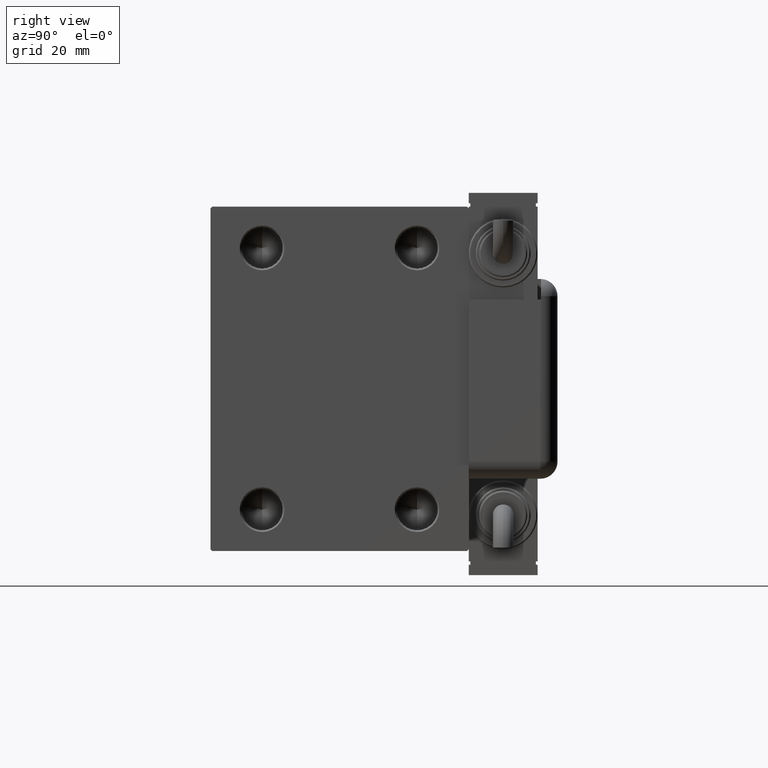
[diagram: clean part render]
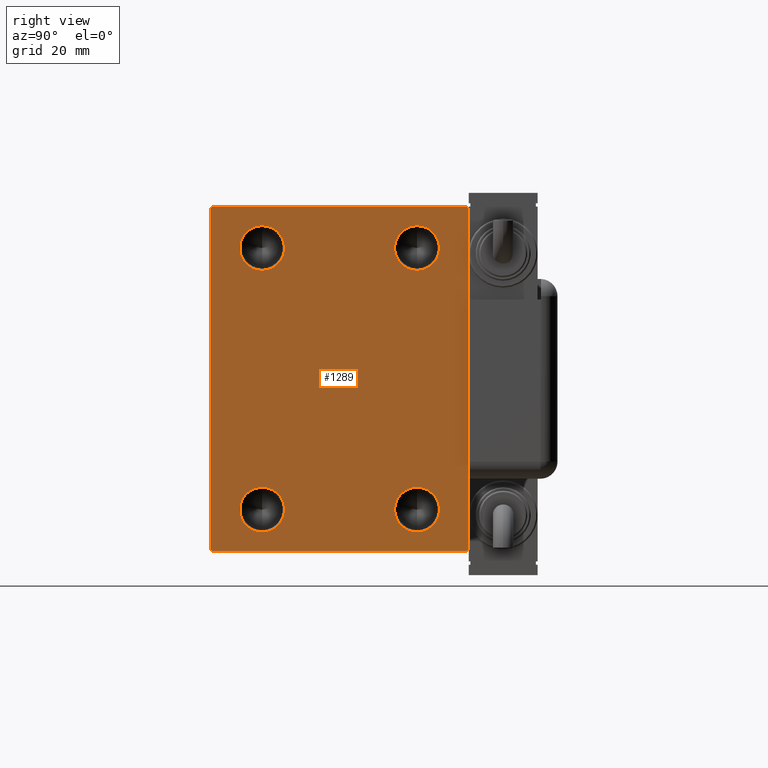
[diagram: same view with one face highlighted and labeled with its STEP entity id]
A machine part, right view. The second image highlights one B-rep face of the part: STEP entity #1289.
In plain terms, the highlighted planar face has unit normal (1, 0, 0).
Its self-contained STEP definition (entity closure, byte-faithful):
#79 = VECTOR ( 'NONE', #59942, 999.9999999999998863 ) ;
#384 = ORIENTED_EDGE ( 'NONE', *, *, #13423, .T. ) ;
#642 = AXIS2_PLACEMENT_3D ( 'NONE', #56776, #29943, #51925 ) ;
#895 = AXIS2_PLACEMENT_3D ( 'NONE', #33063, #51668, #23938 ) ;
#1024 = VERTEX_POINT ( 'NONE', #39678 ) ;
#1154 = DIRECTION ( 'NONE',  ( -0.000000000000000000, -0.7071067811865525687, 0.7071067811865425767 ) ) ;
#1289 = ADVANCED_FACE ( 'NONE', ( #7922, #2757, #40215, #59688, #21631 ), #26512, .T. ) ;
#1761 = VECTOR ( 'NONE', #11153, 1000.000000000000000 ) ;
#2477 = DIRECTION ( 'NONE',  ( 0.000000000000000000, 0.000000000000000000, -1.000000000000000000 ) ) ;
#2616 = VECTOR ( 'NONE', #51568, 1000.000000000000000 ) ;
#2717 = DIRECTION ( 'NONE',  ( 0.000000000000000000, 0.000000000000000000, -1.000000000000000000 ) ) ;
#2736 = LINE ( 'NONE', #54210, #35808 ) ;
#2757 = FACE_BOUND ( 'NONE', #24676, .T. ) ;
#2858 = CARTESIAN_POINT ( 'NONE',  ( 98.00000000000000000, 37.00000000000001421, -50.00000000000000000 ) ) ;
#3414 = CARTESIAN_POINT ( 'NONE',  ( 98.00000000000000000, -22.50000000000000000, -38.00000000000000711 ) ) ;
#3581 = VECTOR ( 'NONE', #40637, 1000.000000000000000 ) ;
#3909 = CARTESIAN_POINT ( 'NONE',  ( 98.00000000000000000, 22.50000000000000000, 44.49999999999998579 ) ) ;
#5886 = ORIENTED_EDGE ( 'NONE', *, *, #45143, .F. ) ;
#6306 = CARTESIAN_POINT ( 'NONE',  ( 98.00000000000000000, 43.49999999999974420, 43.50000000000035527 ) ) ;
#6861 = CARTESIAN_POINT ( 'NONE',  ( 98.00000000000000000, -22.50000000000000000, 31.50000000000000000 ) ) ;
#7344 = ORIENTED_EDGE ( 'NONE', *, *, #34744, .F. ) ;
#7617 = CARTESIAN_POINT ( 'NONE',  ( 98.00000000000000000, 0.000000000000000000, 0.000000000000000000 ) ) ;
#7886 = DIRECTION ( 'NONE',  ( 1.000000000000000000, -0.000000000000000000, -0.000000000000000000 ) ) ;
#7922 = FACE_BOUND ( 'NONE', #11873, .T. ) ;
#7960 = AXIS2_PLACEMENT_3D ( 'NONE', #23216, #50651, #32341 ) ;
#8911 = ORIENTED_EDGE ( 'NONE', *, *, #57261, .T. ) ;
#10206 = VERTEX_POINT ( 'NONE', #3909 ) ;
#10266 = EDGE_CURVE ( 'NONE', #23242, #56742, #32730, .T. ) ;
#10674 = CARTESIAN_POINT ( 'NONE',  ( 98.00000000000000000, 22.50000000000000000, 31.50000000000000000 ) ) ;
#10837 = DIRECTION ( 'NONE',  ( 1.000000000000000000, -0.000000000000000000, -0.000000000000000000 ) ) ;
#11153 = DIRECTION ( 'NONE',  ( 0.000000000000000000, 1.000000000000000000, 0.000000000000000000 ) ) ;
#11642 = ORIENTED_EDGE ( 'NONE', *, *, #26932, .F. ) ;
#11873 = EDGE_LOOP ( 'NONE', ( #58174, #5886 ) ) ;
#11964 = CARTESIAN_POINT ( 'NONE',  ( 98.00000000000000000, -22.50000000000000000, -31.50000000000001421 ) ) ;
#12357 = ORIENTED_EDGE ( 'NONE', *, *, #49728, .F. ) ;
#13109 = VERTEX_POINT ( 'NONE', #40606 ) ;
#13330 = EDGE_CURVE ( 'NONE', #59250, #16831, #2736, .T. ) ;
#13423 = EDGE_CURVE ( 'NONE', #43844, #1024, #23538, .T. ) ;
#13742 = CIRCLE ( 'NONE', #32201, 6.499999999999992006 ) ;
#14148 = EDGE_CURVE ( 'NONE', #45353, #45145, #44293, .T. ) ;
#14949 = EDGE_CURVE ( 'NONE', #16831, #43844, #28859, .T. ) ;
#15076 = ORIENTED_EDGE ( 'NONE', *, *, #28232, .T. ) ;
#15735 = VERTEX_POINT ( 'NONE', #53310 ) ;
#15997 = CARTESIAN_POINT ( 'NONE',  ( 98.00000000000000000, 37.50000000000000711, -49.50000000000001421 ) ) ;
#16831 = VERTEX_POINT ( 'NONE', #42058 ) ;
#17043 = AXIS2_PLACEMENT_3D ( 'NONE', #57133, #10837, #29695 ) ;
#17950 = DIRECTION ( 'NONE',  ( 0.000000000000000000, 0.000000000000000000, -1.000000000000000000 ) ) ;
#18361 = CIRCLE ( 'NONE', #895, 6.499999999999992006 ) ;
#18673 = ORIENTED_EDGE ( 'NONE', *, *, #32732, .T. ) ;
#19294 = CARTESIAN_POINT ( 'NONE',  ( 98.00000000000000000, -37.50000000000000000, 49.49999999999998579 ) ) ;
#20139 = CARTESIAN_POINT ( 'NONE',  ( 98.00000000000000000, 22.50000000000000000, -38.00000000000000711 ) ) ;
#20147 = CARTESIAN_POINT ( 'NONE',  ( 98.00000000000000000, 22.50000000000000000, -44.50000000000000000 ) ) ;
#20596 = LINE ( 'NONE', #58065, #1761 ) ;
#21631 = FACE_OUTER_BOUND ( 'NONE', #42299, .T. ) ;
#21660 = DIRECTION ( 'NONE',  ( 0.000000000000000000, 0.000000000000000000, -1.000000000000000000 ) ) ;
#21700 = ORIENTED_EDGE ( 'NONE', *, *, #25399, .F. ) ;
#22047 = CARTESIAN_POINT ( 'NONE',  ( 98.00000000000000000, -37.50000000000000000, 49.99999999999998579 ) ) ;
#23216 = CARTESIAN_POINT ( 'NONE',  ( 98.00000000000000000, 22.50000000000000000, -38.00000000000000711 ) ) ;
#23242 = VERTEX_POINT ( 'NONE', #11964 ) ;
#23538 = LINE ( 'NONE', #56129, #2616 ) ;
#23938 = DIRECTION ( 'NONE',  ( 0.000000000000000000, 0.000000000000000000, -1.000000000000000000 ) ) ;
#24676 = EDGE_LOOP ( 'NONE', ( #7344, #41631 ) ) ;
#24736 = ORIENTED_EDGE ( 'NONE', *, *, #13330, .T. ) ;
#25320 = DIRECTION ( 'NONE',  ( 1.000000000000000000, -0.000000000000000000, -0.000000000000000000 ) ) ;
#25399 = EDGE_CURVE ( 'NONE', #56742, #23242, #13742, .T. ) ;
#25606 = EDGE_LOOP ( 'NONE', ( #46560, #21700 ) ) ;
#26512 = PLANE ( 'NONE',  #54818 ) ;
#26782 = CIRCLE ( 'NONE', #642, 6.499999999999992006 ) ;
#26932 = EDGE_CURVE ( 'NONE', #13109, #54220, #57557, .T. ) ;
#27066 = CARTESIAN_POINT ( 'NONE',  ( 98.00000000000000000, -43.49999999999972999, 43.50000000000034106 ) ) ;
#27499 = VECTOR ( 'NONE', #45041, 1000.000000000000114 ) ;
#28028 = CIRCLE ( 'NONE', #30929, 6.499999999999992006 ) ;
#28065 = CARTESIAN_POINT ( 'NONE',  ( 98.00000000000000000, -37.00000000000000000, -50.00000000000000000 ) ) ;
#28232 = EDGE_CURVE ( 'NONE', #1024, #45353, #41366, .T. ) ;
#28859 = LINE ( 'NONE', #6306, #51273 ) ;
#29523 = DIRECTION ( 'NONE',  ( 0.000000000000000000, -1.387778780781445676E-16, 1.000000000000000000 ) ) ;
#29695 = DIRECTION ( 'NONE',  ( 0.000000000000000000, 0.000000000000000000, -1.000000000000000000 ) ) ;
#29943 = DIRECTION ( 'NONE',  ( 1.000000000000000000, -0.000000000000000000, -0.000000000000000000 ) ) ;
#30841 = CARTESIAN_POINT ( 'NONE',  ( 98.00000000000000000, 43.49999999999974420, -43.50000000000034817 ) ) ;
#30929 = AXIS2_PLACEMENT_3D ( 'NONE', #43901, #25320, #2477 ) ;
#32046 = CIRCLE ( 'NONE', #52501, 6.499999999999992006 ) ;
#32184 = EDGE_CURVE ( 'NONE', #10206, #37961, #45269, .T. ) ;
#32201 = AXIS2_PLACEMENT_3D ( 'NONE', #3414, #40577, #54590 ) ;
#32206 = VERTEX_POINT ( 'NONE', #6861 ) ;
#32341 = DIRECTION ( 'NONE',  ( 0.000000000000000000, 0.000000000000000000, -1.000000000000000000 ) ) ;
#32730 = CIRCLE ( 'NONE', #40549, 6.499999999999992006 ) ;
#32732 = EDGE_CURVE ( 'NONE', #36823, #59250, #36321, .T. ) ;
#33063 = CARTESIAN_POINT ( 'NONE',  ( 98.00000000000000000, 22.50000000000000000, 37.99999999999999289 ) ) ;
#34744 = EDGE_CURVE ( 'NONE', #15735, #32206, #26782, .T. ) ;
#35808 = VECTOR ( 'NONE', #29523, 1000.000000000000000 ) ;
#36321 = LINE ( 'NONE', #30841, #40443 ) ;
#36823 = VERTEX_POINT ( 'NONE', #2858 ) ;
#37961 = VERTEX_POINT ( 'NONE', #10674 ) ;
#39274 = EDGE_LOOP ( 'NONE', ( #11642, #12357 ) ) ;
#39678 = CARTESIAN_POINT ( 'NONE',  ( 98.00000000000000000, -36.99999999999999289, 49.99999999999998579 ) ) ;
#40215 = FACE_BOUND ( 'NONE', #25606, .T. ) ;
#40443 = VECTOR ( 'NONE', #54913, 1000.000000000000000 ) ;
#40515 = DIRECTION ( 'NONE',  ( 1.000000000000000000, 0.000000000000000000, 0.000000000000000000 ) ) ;
#40549 = AXIS2_PLACEMENT_3D ( 'NONE', #58749, #7886, #2717 ) ;
#40577 = DIRECTION ( 'NONE',  ( 1.000000000000000000, -0.000000000000000000, -0.000000000000000000 ) ) ;
#40606 = CARTESIAN_POINT ( 'NONE',  ( 98.00000000000000000, 22.50000000000000000, -31.50000000000001421 ) ) ;
#40637 = DIRECTION ( 'NONE',  ( 0.000000000000000000, 0.000000000000000000, -1.000000000000000000 ) ) ;
#41366 = LINE ( 'NONE', #27066, #79 ) ;
#41631 = ORIENTED_EDGE ( 'NONE', *, *, #42190, .F. ) ;
#42058 = CARTESIAN_POINT ( 'NONE',  ( 98.00000000000000000, 37.49999999999999289, 49.50000000000002842 ) ) ;
#42190 = EDGE_CURVE ( 'NONE', #32206, #15735, #28028, .T. ) ;
#42299 = EDGE_LOOP ( 'NONE', ( #384, #15076, #48539, #8911, #49486, #18673, #24736, #48915 ) ) ;
#42489 = EDGE_CURVE ( 'NONE', #55105, #36823, #20596, .T. ) ;
#43844 = VERTEX_POINT ( 'NONE', #52695 ) ;
#43901 = CARTESIAN_POINT ( 'NONE',  ( 98.00000000000000000, -22.50000000000000000, 37.99999999999999289 ) ) ;
#44293 = LINE ( 'NONE', #22047, #3581 ) ;
#45041 = DIRECTION ( 'NONE',  ( -0.000000000000000000, 0.7071067811865474617, -0.7071067811865474617 ) ) ;
#45143 = EDGE_CURVE ( 'NONE', #37961, #10206, #18361, .T. ) ;
#45145 = VERTEX_POINT ( 'NONE', #56523 ) ;
#45269 = CIRCLE ( 'NONE', #17043, 6.499999999999992006 ) ;
#45353 = VERTEX_POINT ( 'NONE', #19294 ) ;
#46560 = ORIENTED_EDGE ( 'NONE', *, *, #10266, .F. ) ;
#48539 = ORIENTED_EDGE ( 'NONE', *, *, #14148, .T. ) ;
#48915 = ORIENTED_EDGE ( 'NONE', *, *, #14949, .T. ) ;
#49486 = ORIENTED_EDGE ( 'NONE', *, *, #42489, .T. ) ;
#49728 = EDGE_CURVE ( 'NONE', #54220, #13109, #32046, .T. ) ;
#50651 = DIRECTION ( 'NONE',  ( 1.000000000000000000, -0.000000000000000000, -0.000000000000000000 ) ) ;
#51273 = VECTOR ( 'NONE', #1154, 999.9999999999998863 ) ;
#51568 = DIRECTION ( 'NONE',  ( 0.000000000000000000, -1.000000000000000000, -2.775557561562891844E-16 ) ) ;
#51668 = DIRECTION ( 'NONE',  ( 1.000000000000000000, -0.000000000000000000, -0.000000000000000000 ) ) ;
#51925 = DIRECTION ( 'NONE',  ( 0.000000000000000000, 0.000000000000000000, -1.000000000000000000 ) ) ;
#52501 = AXIS2_PLACEMENT_3D ( 'NONE', #20139, #52744, #21660 ) ;
#52695 = CARTESIAN_POINT ( 'NONE',  ( 98.00000000000000000, 37.00000000000000711, 50.00000000000000711 ) ) ;
#52744 = DIRECTION ( 'NONE',  ( 1.000000000000000000, -0.000000000000000000, -0.000000000000000000 ) ) ;
#53310 = CARTESIAN_POINT ( 'NONE',  ( 98.00000000000000000, -22.50000000000000000, 44.49999999999998579 ) ) ;
#54210 = CARTESIAN_POINT ( 'NONE',  ( 98.00000000000000000, 37.50000000000000711, -50.00000000000000000 ) ) ;
#54220 = VERTEX_POINT ( 'NONE', #20147 ) ;
#54479 = CARTESIAN_POINT ( 'NONE',  ( 98.00000000000000000, -43.50000000000000711, -43.50000000000000711 ) ) ;
#54590 = DIRECTION ( 'NONE',  ( 0.000000000000000000, 0.000000000000000000, -1.000000000000000000 ) ) ;
#54818 = AXIS2_PLACEMENT_3D ( 'NONE', #7617, #40515, #17950 ) ;
#54913 = DIRECTION ( 'NONE',  ( -0.000000000000000000, 0.7071067811865524577, 0.7071067811865426878 ) ) ;
#55105 = VERTEX_POINT ( 'NONE', #28065 ) ;
#55278 = CARTESIAN_POINT ( 'NONE',  ( 98.00000000000000000, -22.50000000000000000, -44.50000000000000000 ) ) ;
#55358 = LINE ( 'NONE', #54479, #27499 ) ;
#56129 = CARTESIAN_POINT ( 'NONE',  ( 98.00000000000000000, 37.49999999999999289, 50.00000000000000711 ) ) ;
#56523 = CARTESIAN_POINT ( 'NONE',  ( 98.00000000000000000, -37.50000000000000000, -49.49999999999997158 ) ) ;
#56742 = VERTEX_POINT ( 'NONE', #55278 ) ;
#56776 = CARTESIAN_POINT ( 'NONE',  ( 98.00000000000000000, -22.50000000000000000, 37.99999999999999289 ) ) ;
#57133 = CARTESIAN_POINT ( 'NONE',  ( 98.00000000000000000, 22.50000000000000000, 37.99999999999999289 ) ) ;
#57261 = EDGE_CURVE ( 'NONE', #45145, #55105, #55358, .T. ) ;
#57557 = CIRCLE ( 'NONE', #7960, 6.499999999999992006 ) ;
#58065 = CARTESIAN_POINT ( 'NONE',  ( 98.00000000000000000, -37.50000000000000000, -50.00000000000000000 ) ) ;
#58174 = ORIENTED_EDGE ( 'NONE', *, *, #32184, .F. ) ;
#58749 = CARTESIAN_POINT ( 'NONE',  ( 98.00000000000000000, -22.50000000000000000, -38.00000000000000711 ) ) ;
#59250 = VERTEX_POINT ( 'NONE', #15997 ) ;
#59688 = FACE_BOUND ( 'NONE', #39274, .T. ) ;
#59942 = DIRECTION ( 'NONE',  ( 0.000000000000000000, -0.7071067811865525687, -0.7071067811865425767 ) ) ;